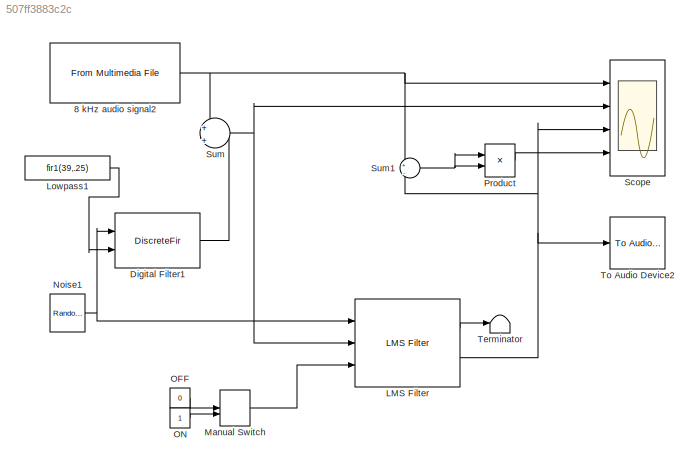
MODEL slx_507ff3883c2c
KIND model
CONFIG AbsTol = auto
CONFIG EnableMultiTasking = on
CONFIG FixedStep = auto
CONFIG MaxStep = auto
CONFIG MinStep = auto
CONFIG RelTol = 1e-3
CONFIG SampleTimeConstraint = Unconstrained
CONFIG Solver = ode45
CONFIG SolverName = ode45
CONFIG StartTime = 0.0
CONFIG StopTime = 60
BLOCK [Reference] 8 kHz audio signal2  REF=dspvision/From Multimedia File
  Ports = [0, 1]
  SourceBlock = dspvision/From Multimedia File
  SourceType = From Multimedia File
BLOCK [DiscreteFir] Digital Filter1
  AccumDataTypeStr = Inherit: Same as product output
  CoefSource = Input port
  Coefficients = [1 2]
  InputPortMap = u0,u1
  InputProcessing = Columns as channels (frame based)
  OutDataTypeStr = Inherit: Same as input
  OutputPortMap = o0
  Ports = [2, 1]
  ProductDataTypeStr = Inherit: Same as input
  StateDataTypeStr = Inherit: Same as input
BLOCK [Reference] LMS Filter  REF=dspadpt3/LMS Filter
  Ports = [3, 2]
  SourceBlock = dspadpt3/LMS Filter
  SourceType = LMS Filter
BLOCK [Constant] Lowpass1
  OutDataTypeStr = Inherit: Inherit via back propagation
  Value = fir1(39,.25)
BLOCK [ManualSwitch] Manual Switch
  CurrentSetting = 0
BLOCK [Reference] Noise1  REF=dspsrcs4/Random
Source
  Ports = [0, 1]
  SourceBlock = dspsrcs4/Random\nSource
  SourceType = Random Source
  UserDataPersistent = on
BLOCK [Constant] OFF
  Value = 0
BLOCK [Constant] ON
BLOCK [Product] Product
  InputSameDT = off
  OutDataTypeStr = Inherit: Inherit via internal rule
  Ports = [2, 1]
  SaturateOnIntegerOverflow = off
BLOCK [Scope] Scope
  NumInputPorts = 4
  Ports = [4]
  ScopeSpecificationString = Simulink.scopes.TimeScopeBlockCfg('CurrentConfiguration', extmgr.ConfigurationSet(extmgr.Configuration('Core','General UI',true),extmgr.Configuration('Core','Source UI',true),extmgr.Configuration('Sources','WiredSimulink',true,'DataLoggingSaveFormat','Structure','DataLoggingLimitDataPoints',true,'DataLoggingDecimation','1','DataLoggingDecimateData',true),extmgr.Configuration('Visuals','Time Domain...<+5700ch>
BLOCK [Sum] Sum
  IconShape = round
  InputSameDT = off
  Inputs = +|+
  OutDataTypeStr = Inherit: Inherit via internal rule
  Ports = [2, 1]
  SaturateOnIntegerOverflow = off
BLOCK [Sum] Sum1
  IconShape = round
  InputSameDT = off
  Inputs = +|-
  OutDataTypeStr = Inherit: Inherit via internal rule
  Ports = [2, 1]
  SaturateOnIntegerOverflow = off
BLOCK [Terminator] Terminator
BLOCK [Reference] To Audio Device2  REF=dspobslib/To Audio
Device
  Ports = [1]
  SourceBlock = dspobslib/To Audio\nDevice
  SourceType = To Audio Device
NET 8 kHz audio signal2:1 -> Scope:1, Sum1:1, Sum:1
LINE Digital Filter1:1 -> Sum:2
LINE LMS Filter:1 -> Terminator:1
NET LMS Filter:2 -> Scope:3, Sum1:2, To Audio Device2:1
LINE Lowpass1:1 -> Digital Filter1:2
LINE Manual Switch:1 -> LMS Filter:3
NET Noise1:1 -> Digital Filter1:1, LMS Filter:1
LINE OFF:1 -> Manual Switch:1
LINE ON:1 -> Manual Switch:2
LINE Product:1 -> Scope:4
NET Sum1:1 -> Product:1, Product:2
NET Sum:1 -> LMS Filter:2, Scope:2
note: NET lines group one-source signal fan-out (src -> all destinations, sorted); 1:1 wires keep LINE
